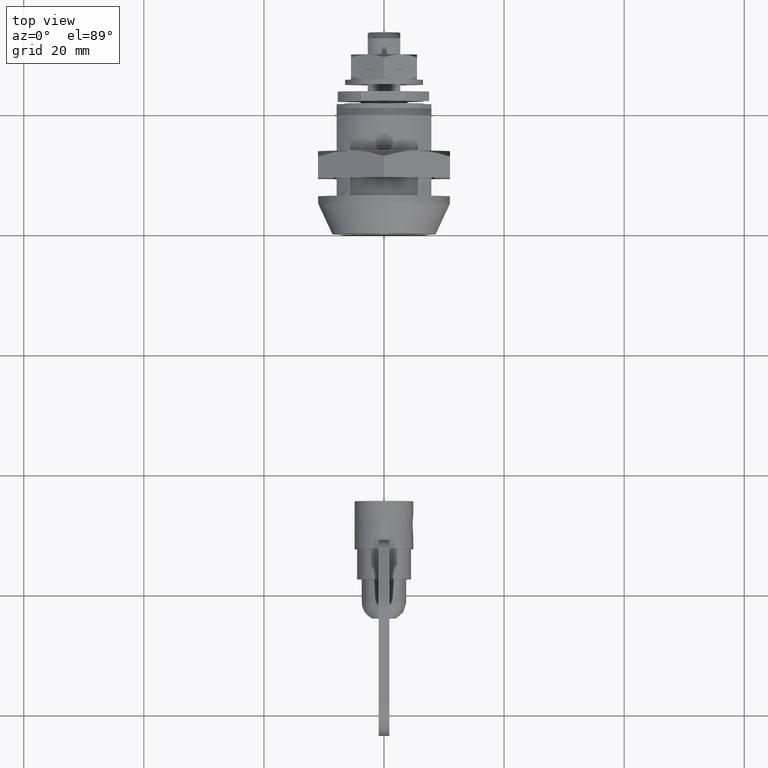
[diagram: clean part render]
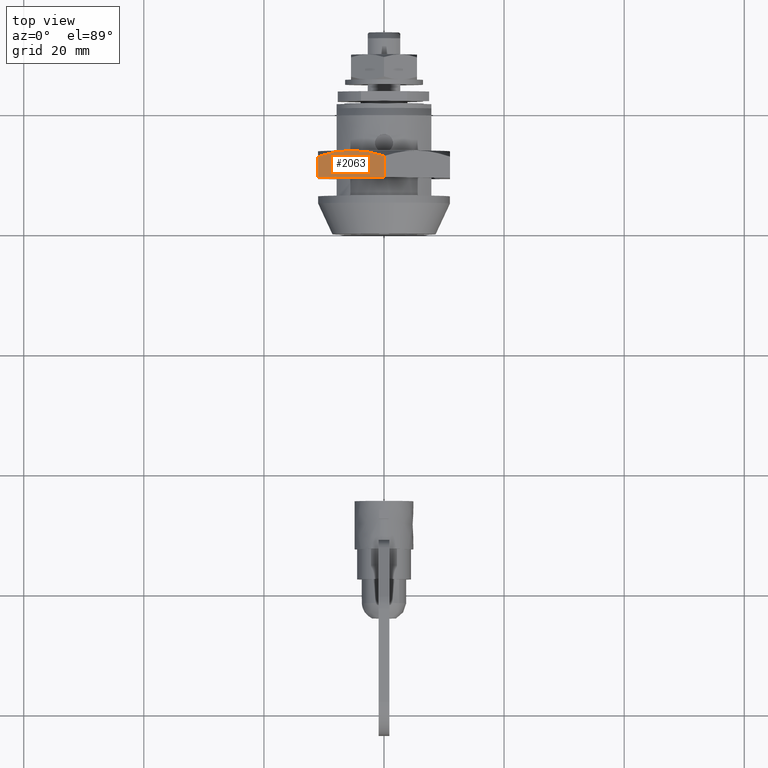
[diagram: same view with one face highlighted and labeled with its STEP entity id]
A machine part, top view. The second image highlights one B-rep face of the part: STEP entity #2063.
In plain terms, the highlighted face is a freeform B-spline surface patch.
Its self-contained STEP definition (entity closure, byte-faithful):
#1751=CARTESIAN_POINT('',(15.800003000000100,5.499994829120610,9.526282427035561));
#1752=VERTEX_POINT('',#1751);
#1753=CARTESIAN_POINT('',(14.817523160168721,10.999996153432580,6.350857779185181));
#1754=VERTEX_POINT('',#1753);
#1755=CARTESIAN_POINT('',(15.800003000000100,5.499994829120610,9.526282427035561));
#1756=CARTESIAN_POINT('',(15.800001750894580,5.730326894069240,9.393300257458890));
#1757=CARTESIAN_POINT('',(15.794391947090460,5.961775963762077,9.259673185241953));
#1758=CARTESIAN_POINT('',(15.771958273435979,6.426109567531918,8.991590275376760));
#1759=CARTESIAN_POINT('',(15.754991292353861,6.659215688780146,8.857006504416782));
#1760=CARTESIAN_POINT('',(15.687829433194830,7.356201413806067,8.454601939478676));
#1761=CARTESIAN_POINT('',(15.621335622288910,7.817742925314195,8.188131042047560));
#1762=CARTESIAN_POINT('',(15.364572475837280,9.194150361610499,7.393462487814456));
#1763=CARTESIAN_POINT('',(15.117244623725471,10.100831205946120,6.869990483624071));
#1764=CARTESIAN_POINT('',(14.817523160168721,10.999996153432580,6.350857779185181));
#1765=B_SPLINE_CURVE_WITH_KNOTS('',3,(#1755,#1756,#1757,#1758,#1759,#1760,#1761,#1762,#1763,#1764),.UNSPECIFIED.,.F.,.U.,(4,2,2,2,4),(0.500936242713236,0.562500000000000,0.625000000000000,0.750000000000000,1.0),.UNSPECIFIED.);
#1766=EDGE_CURVE('',#1752,#1754,#1765,.T.);
#1957=CARTESIAN_POINT('',(14.817523160168721,-0.000015000030783,12.701704999991239));
#1958=VERTEX_POINT('',#1957);
#1959=CARTESIAN_POINT('',(14.817523160168721,-0.000015000030783,12.701704999991239));
#1960=CARTESIAN_POINT('',(15.116871534040531,0.898032746726091,12.183218474803761));
#1961=CARTESIAN_POINT('',(15.363588798810920,1.802627935155848,11.660951786641419));
#1962=CARTESIAN_POINT('',(15.619926449750629,3.173670040240929,10.869382648435479));
#1963=CARTESIAN_POINT('',(15.686370500345211,3.633047950849908,10.604161486360599));
#1964=CARTESIAN_POINT('',(15.776253448952820,4.557153720662308,10.070630371412150));
#1965=CARTESIAN_POINT('',(15.799655186040050,5.021886202777890,9.802317749501995));
#1966=CARTESIAN_POINT('',(15.800001739211121,5.492989431642154,9.530326983116902));
#1967=CARTESIAN_POINT('',(15.800003018161830,5.496492001214239,9.528304779650780));
#1968=CARTESIAN_POINT('',(15.800003000000100,5.499994829120610,9.526282427035561));
#1969=B_SPLINE_CURVE_WITH_KNOTS('',3,(#1959,#1960,#1961,#1962,#1963,#1964,#1965,#1966,#1967,#1968),.UNSPECIFIED.,.F.,.U.,(4,2,2,2,4),(0.0,0.250000000000000,0.375000000000000,0.500000000000000,0.500936242713236),.UNSPECIFIED.);
#1970=EDGE_CURVE('',#1958,#1752,#1969,.T.);
#2035=CARTESIAN_POINT('',(11.075228050964650,-0.549465727940676,13.018938788269510));
#2036=CARTESIAN_POINT('',(11.075228050964650,11.549451022973750,6.033634701636673));
#2037=CARTESIAN_POINT('',(16.024778109967990,-0.549465727940676,13.018938788269510));
#2038=CARTESIAN_POINT('',(16.024778109967990,11.549451022973750,6.033634701636673));
#2039=B_SPLINE_SURFACE_WITH_KNOTS('',1,1,((#2035,#2037),(#2036,#2038)),.UNSPECIFIED.,.F.,.F.,.U.,(2,2),(2,2),(0.0,13.970621307883450),(0.0,4.949550059003343),.UNSPECIFIED.);
#2040=CARTESIAN_POINT('',(11.300003000000000,-0.000015000010331,12.701713660249240));
#2041=VERTEX_POINT('',#2040);
#2042=CARTESIAN_POINT('',(14.817523160168721,-0.000015000030783,12.701704999991239));
#2043=CARTESIAN_POINT('',(11.300003000000000,-0.000015000010331,12.701713660249240));
#2044=QUASI_UNIFORM_CURVE('',1,(#2042,#2043),.UNSPECIFIED.,.F.,.U.);
#2045=EDGE_CURVE('',#1958,#2041,#2044,.T.);
#2046=ORIENTED_EDGE('',*,*,#2045,.F.);
#2047=ORIENTED_EDGE('',*,*,#1970,.T.);
#2048=ORIENTED_EDGE('',*,*,#1766,.T.);
#2049=CARTESIAN_POINT('',(11.300003000000000,11.0,6.350860000000099));
#2050=VERTEX_POINT('',#2049);
#2051=CARTESIAN_POINT('',(14.817523160168721,10.999996153432580,6.350857779185181));
#2052=CARTESIAN_POINT('',(11.300003000000000,11.0,6.350860000000099));
#2053=QUASI_UNIFORM_CURVE('',1,(#2051,#2052),.UNSPECIFIED.,.F.,.U.);
#2054=EDGE_CURVE('',#1754,#2050,#2053,.T.);
#2055=ORIENTED_EDGE('',*,*,#2054,.T.);
#2056=CARTESIAN_POINT('',(11.300003000000000,11.0,6.350860000000099));
#2057=CARTESIAN_POINT('',(11.300003000000000,-0.000015000010331,12.701713660249240));
#2058=QUASI_UNIFORM_CURVE('',1,(#2056,#2057),.UNSPECIFIED.,.F.,.U.);
#2059=EDGE_CURVE('',#2050,#2041,#2058,.T.);
#2060=ORIENTED_EDGE('',*,*,#2059,.T.);
#2061=EDGE_LOOP('',(#2046,#2047,#2048,#2055,#2060));
#2062=FACE_OUTER_BOUND('',#2061,.T.);
#2063=ADVANCED_FACE('',(#2062),#2039,.F.);